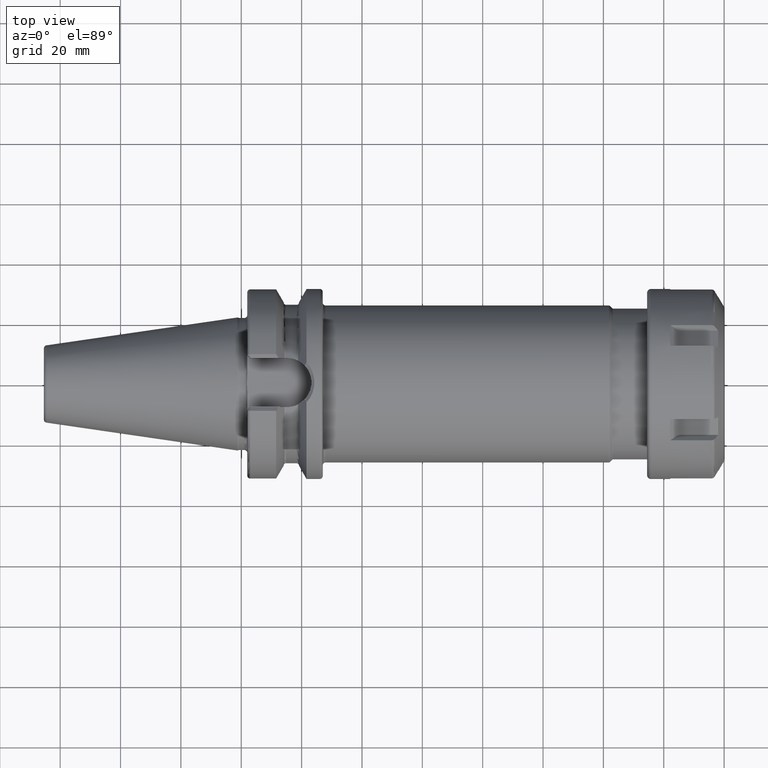
[diagram: clean part render]
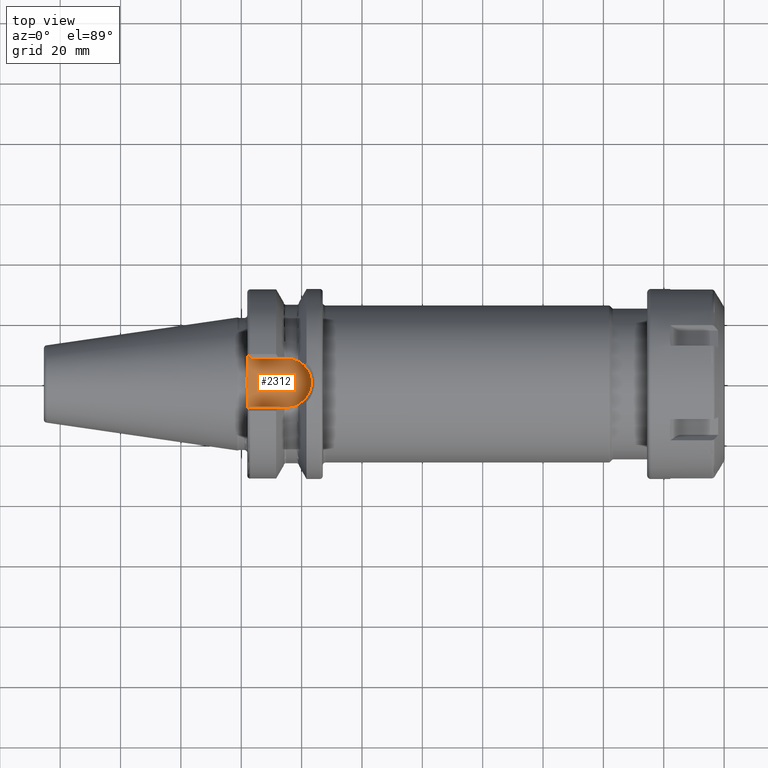
[diagram: same view with one face highlighted and labeled with its STEP entity id]
A machine part, top view. The second image highlights one B-rep face of the part: STEP entity #2312.
In plain terms, the highlighted planar face has unit normal (0, 0, 1).
Its self-contained STEP definition (entity closure, byte-faithful):
#680=DIRECTION('',(1.E0,0.E0,0.E0));
#681=VECTOR('',#680,1.2155E1);
#682=CARTESIAN_POINT('',(3.E0,-8.095E0,2.245E1));
#683=LINE('',#682,#681);
#684=DIRECTION('',(0.E0,1.E0,0.E0));
#685=VECTOR('',#684,4.706022328605E0);
#686=CARTESIAN_POINT('',(2.E0,-9.095E0,2.245E1));
#687=LINE('',#686,#685);
#688=DIRECTION('',(0.E0,1.E0,0.E0));
#689=VECTOR('',#688,4.706022328605E0);
#690=CARTESIAN_POINT('',(2.E0,4.388977671395E0,2.245E1));
#691=LINE('',#690,#689);
#692=DIRECTION('',(-1.E0,0.E0,0.E0));
#693=VECTOR('',#692,1.2155E1);
#694=CARTESIAN_POINT('',(1.5155E1,8.095E0,2.245E1));
#695=LINE('',#694,#693);
#696=CARTESIAN_POINT('',(1.5155E1,0.E0,2.245E1));
#697=DIRECTION('',(0.E0,0.E0,1.E0));
#698=DIRECTION('',(0.E0,-1.E0,0.E0));
#699=AXIS2_PLACEMENT_3D('',#696,#697,#698);
#705=DIRECTION('',(7.071067811865E-1,7.071067811865E-1,0.E0));
#706=VECTOR('',#705,1.414213562373E0);
#707=CARTESIAN_POINT('',(2.E0,-9.095E0,2.245E1));
#708=LINE('',#707,#706);
#714=CARTESIAN_POINT('',(2.E0,-4.388977671395E0,2.245E1));
#715=CARTESIAN_POINT('',(2.E0,-3.970864393558E0,2.245E1));
#716=CARTESIAN_POINT('',(1.981114905487E0,-3.134790252725E0,2.245E1));
#717=CARTESIAN_POINT('',(1.935909306649E0,-1.881114481277E0,2.245E1));
#718=CARTESIAN_POINT('',(1.903922826077E0,-6.271978192649E-1,2.245E1));
#719=CARTESIAN_POINT('',(1.903921553166E0,6.271174205746E-1,2.245E1));
#720=CARTESIAN_POINT('',(1.935907277499E0,1.881058976319E0,2.245E1));
#721=CARTESIAN_POINT('',(1.981114329557E0,3.134769380755E0,2.245E1));
#722=CARTESIAN_POINT('',(2.E0,3.970858027314E0,2.245E1));
#723=CARTESIAN_POINT('',(2.E0,4.388977671395E0,2.245E1));
#730=DIRECTION('',(-7.071067811865E-1,7.071067811865E-1,0.E0));
#731=VECTOR('',#730,1.414213562373E0);
#732=CARTESIAN_POINT('',(3.E0,8.095E0,2.245E1));
#733=LINE('',#732,#731);
#1364=CARTESIAN_POINT('',(1.5155E1,-8.095E0,2.245E1));
#1365=CARTESIAN_POINT('',(1.5155E1,8.095E0,2.245E1));
#1366=VERTEX_POINT('',#1364);
#1367=VERTEX_POINT('',#1365);
#1368=CARTESIAN_POINT('',(2.E0,4.388977671395E0,2.245E1));
#1369=VERTEX_POINT('',#1368);
#1370=CARTESIAN_POINT('',(2.E0,-4.388977671395E0,2.245E1));
#1371=VERTEX_POINT('',#1370);
#1405=CARTESIAN_POINT('',(3.E0,-8.095E0,2.245E1));
#1407=VERTEX_POINT('',#1405);
#1409=CARTESIAN_POINT('',(2.E0,-9.095E0,2.245E1));
#1411=VERTEX_POINT('',#1409);
#1418=CARTESIAN_POINT('',(2.E0,9.095E0,2.245E1));
#1419=VERTEX_POINT('',#1418);
#1420=CARTESIAN_POINT('',(3.E0,8.095E0,2.245E1));
#1422=VERTEX_POINT('',#1420);
#2294=CARTESIAN_POINT('',(0.E0,0.E0,2.245E1));
#2295=DIRECTION('',(0.E0,0.E0,1.E0));
#2296=DIRECTION('',(1.E0,0.E0,0.E0));
#2297=AXIS2_PLACEMENT_3D('',#2294,#2295,#2296);
#2298=PLANE('',#2297);
#2299=ORIENTED_EDGE('',*,*,#2060,.F.);
#2301=ORIENTED_EDGE('',*,*,#2300,.F.);
#2302=ORIENTED_EDGE('',*,*,#1671,.T.);
#2304=ORIENTED_EDGE('',*,*,#2303,.T.);
#2305=ORIENTED_EDGE('',*,*,#1649,.T.);
#2307=ORIENTED_EDGE('',*,*,#2306,.F.);
#2308=ORIENTED_EDGE('',*,*,#2285,.F.);
#2309=ORIENTED_EDGE('',*,*,#2031,.F.);
#2310=EDGE_LOOP('',(#2299,#2301,#2302,#2304,#2305,#2307,#2308,#2309));
#2311=FACE_OUTER_BOUND('',#2310,.F.);
#2312=ADVANCED_FACE('',(#2311),#2298,.T.);
#700=CIRCLE('',#699,8.095E0);
#724=B_SPLINE_CURVE_WITH_KNOTS('',3,(#714,#715,#716,#717,#718,#719,#720,#721,
#722,#723),.UNSPECIFIED.,.F.,.F.,(4,1,1,1,1,1,1,4),(0.E0,1.428571428571E-1,
2.857142857143E-1,4.285714285714E-1,5.714285714286E-1,7.142857142857E-1,
8.571428571429E-1,1.E0),.UNSPECIFIED.);
#1649=EDGE_CURVE('',#1369,#1419,#691,.T.);
#1671=EDGE_CURVE('',#1411,#1371,#687,.T.);
#2031=EDGE_CURVE('',#1366,#1367,#700,.T.);
#2060=EDGE_CURVE('',#1407,#1366,#683,.T.);
#2285=EDGE_CURVE('',#1367,#1422,#695,.T.);
#2300=EDGE_CURVE('',#1411,#1407,#708,.T.);
#2303=EDGE_CURVE('',#1371,#1369,#724,.T.);
#2306=EDGE_CURVE('',#1422,#1419,#733,.T.);